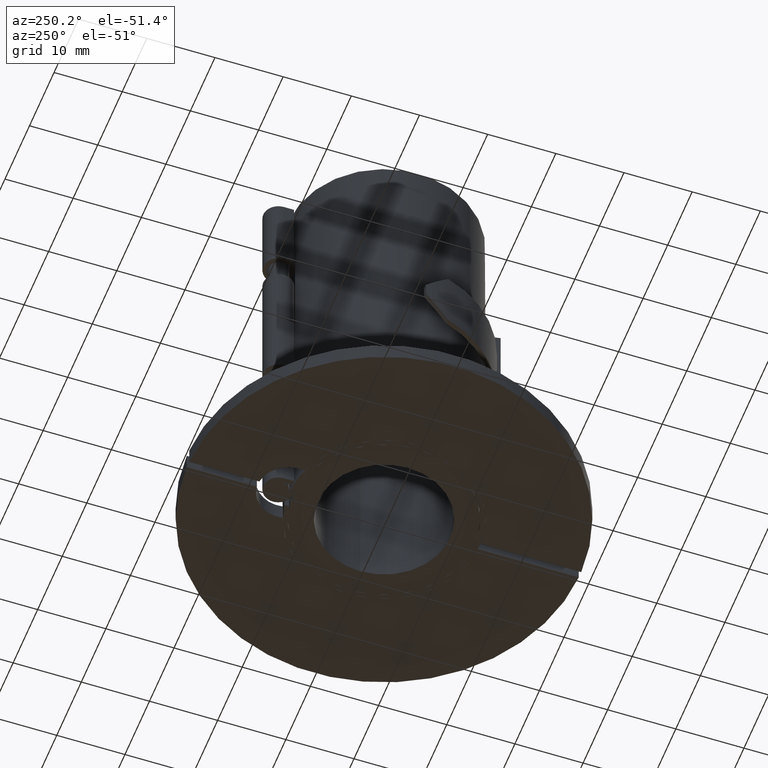
[diagram: clean part render]
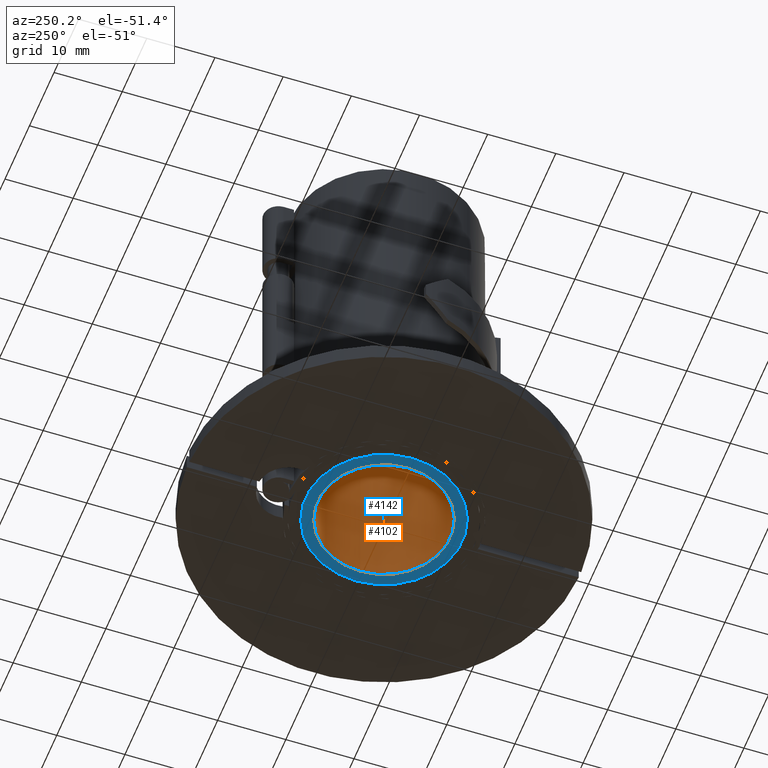
[diagram: same view with the hole feature highlighted: cylindrical wall and planar end face, labeled with their STEP entity ids]
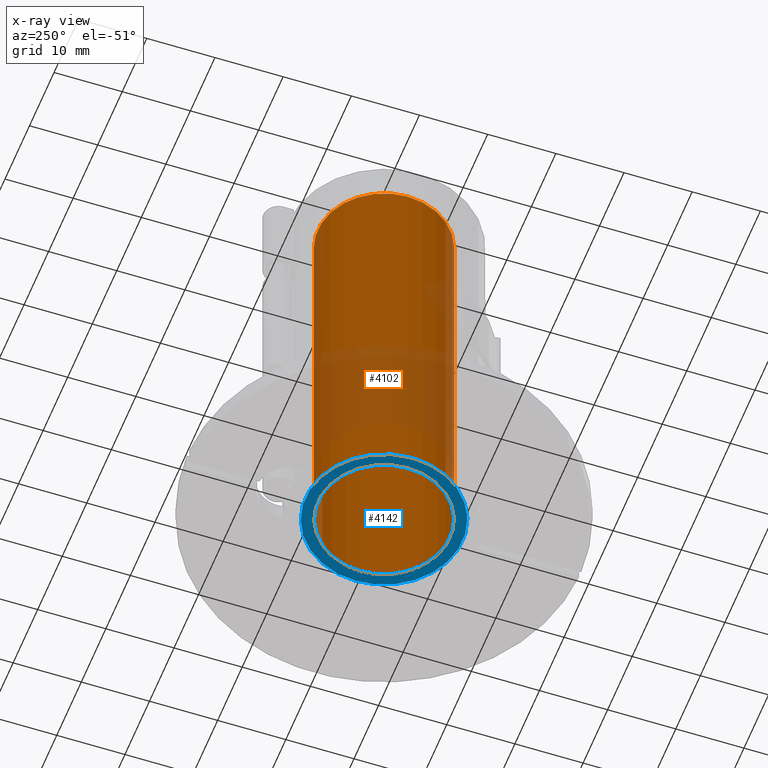
[diagram: x-ray of the same camera — body ghosted, the hole faces saturated]
A machine part, auxiliary view. The highlighted faces form one hole feature of diameter 19.4 mm: the cylindrical wall (entity #4102, orange) and its adjacent planar end face (entity #4142, blue) — they share a circular edge in the B-rep.
The next image is the same camera in x-ray (body ghosted, the hole faces saturated) — the bore reads through the body.
Wall:
#4075=CARTESIAN_POINT('',(0.0,0.0,0.0));
#4076=DIRECTION('',(0.0,0.0,1.0));
#4077=DIRECTION('',(-1.0,0.0,0.0));
#4078=AXIS2_PLACEMENT_3D('',#4075,#4076,#4077);
#4079=CYLINDRICAL_SURFACE('',#4078,9.700000000000001);
#4080=CARTESIAN_POINT('',(9.700000000000001,1.187907E-015,60.0));
#4081=VERTEX_POINT('',#4080);
#4082=CARTESIAN_POINT('',(0.0,0.0,60.0));
#4083=DIRECTION('',(0.0,0.0,-1.0));
#4084=DIRECTION('',(-1.0,0.0,0.0));
#4085=AXIS2_PLACEMENT_3D('',#4082,#4083,#4084);
#4086=CIRCLE('',#4085,9.700000000000001);
#4087=EDGE_CURVE('',#4081,#4081,#4086,.T.);
#4088=ORIENTED_EDGE('',*,*,#4087,.F.);
#4089=EDGE_LOOP('',(#4088));
#4090=FACE_OUTER_BOUND('',#4089,.T.);
#4091=CARTESIAN_POINT('',(9.700000000000001,1.187907E-015,0.0));
#4092=VERTEX_POINT('',#4091);
#4093=CARTESIAN_POINT('',(0.0,0.0,0.0));
#4094=DIRECTION('',(0.0,0.0,1.0));
#4095=DIRECTION('',(-1.0,0.0,0.0));
#4096=AXIS2_PLACEMENT_3D('',#4093,#4094,#4095);
#4097=CIRCLE('',#4096,9.700000000000001);
#4098=EDGE_CURVE('',#4092,#4092,#4097,.T.);
#4099=ORIENTED_EDGE('',*,*,#4098,.F.);
#4100=EDGE_LOOP('',(#4099));
#4101=FACE_BOUND('',#4100,.T.);
#4102=ADVANCED_FACE('',(#4090,#4101),#4079,.F.);
End face:
#4091=CARTESIAN_POINT('',(9.700000000000001,1.187907E-015,0.0));
#4092=VERTEX_POINT('',#4091);
#4093=CARTESIAN_POINT('',(0.0,0.0,0.0));
#4094=DIRECTION('',(0.0,0.0,1.0));
#4095=DIRECTION('',(-1.0,0.0,0.0));
#4096=AXIS2_PLACEMENT_3D('',#4093,#4094,#4095);
#4097=CIRCLE('',#4096,9.700000000000001);
#4098=EDGE_CURVE('',#4092,#4092,#4097,.T.);
#4123=CARTESIAN_POINT('',(0.0,0.0,0.0));
#4124=DIRECTION('',(0.0,0.0,-1.0));
#4125=DIRECTION('',(-1.0,0.0,0.0));
#4126=AXIS2_PLACEMENT_3D('',#4123,#4124,#4125);
#4127=PLANE('',#4126);
#4128=CARTESIAN_POINT('',(11.500000000000002,1.408344E-015,0.0));
#4129=VERTEX_POINT('',#4128);
#4130=CARTESIAN_POINT('',(0.0,0.0,0.0));
#4131=DIRECTION('',(0.0,0.0,1.0));
#4132=DIRECTION('',(-1.0,0.0,0.0));
#4133=AXIS2_PLACEMENT_3D('',#4130,#4131,#4132);
#4134=CIRCLE('',#4133,11.500000000000002);
#4135=EDGE_CURVE('',#4129,#4129,#4134,.T.);
#4136=ORIENTED_EDGE('',*,*,#4135,.F.);
#4137=EDGE_LOOP('',(#4136));
#4138=FACE_OUTER_BOUND('',#4137,.T.);
#4139=ORIENTED_EDGE('',*,*,#4098,.T.);
#4140=EDGE_LOOP('',(#4139));
#4141=FACE_BOUND('',#4140,.T.);
#4142=ADVANCED_FACE('',(#4138,#4141),#4127,.T.);